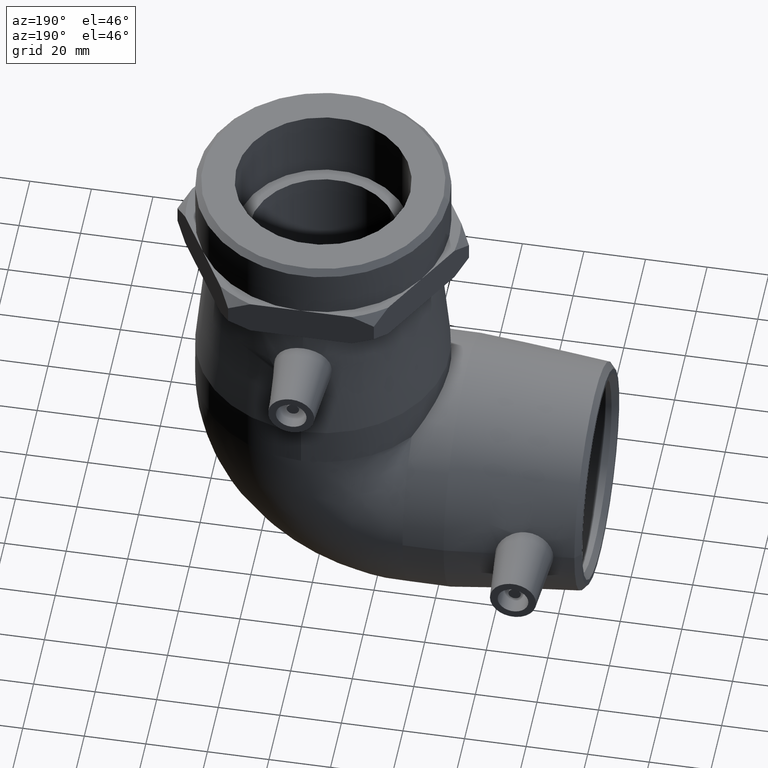
[diagram: clean part render]
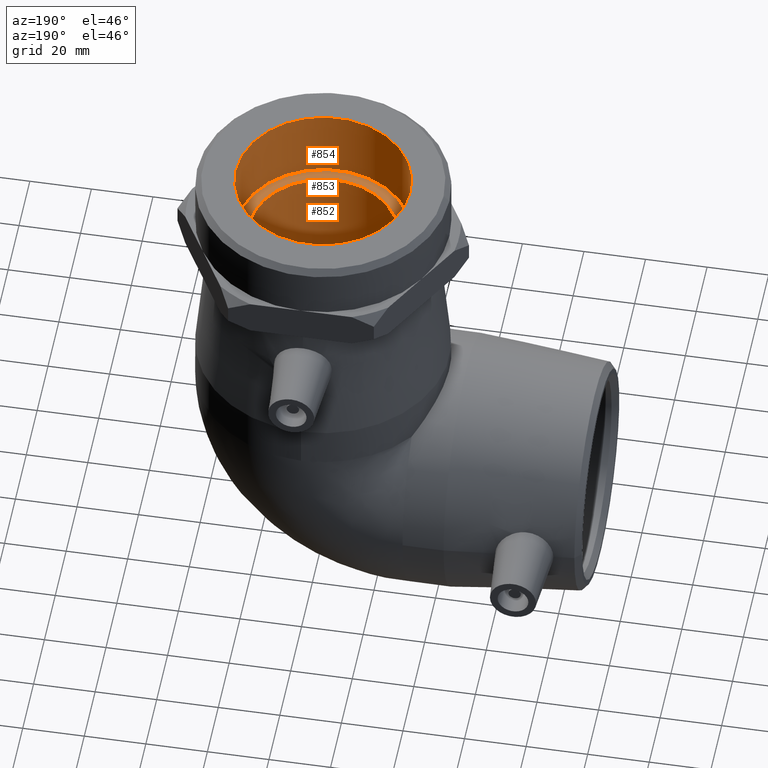
[diagram: same view with one multi-face feature highlighted, each face labeled with its STEP entity id]
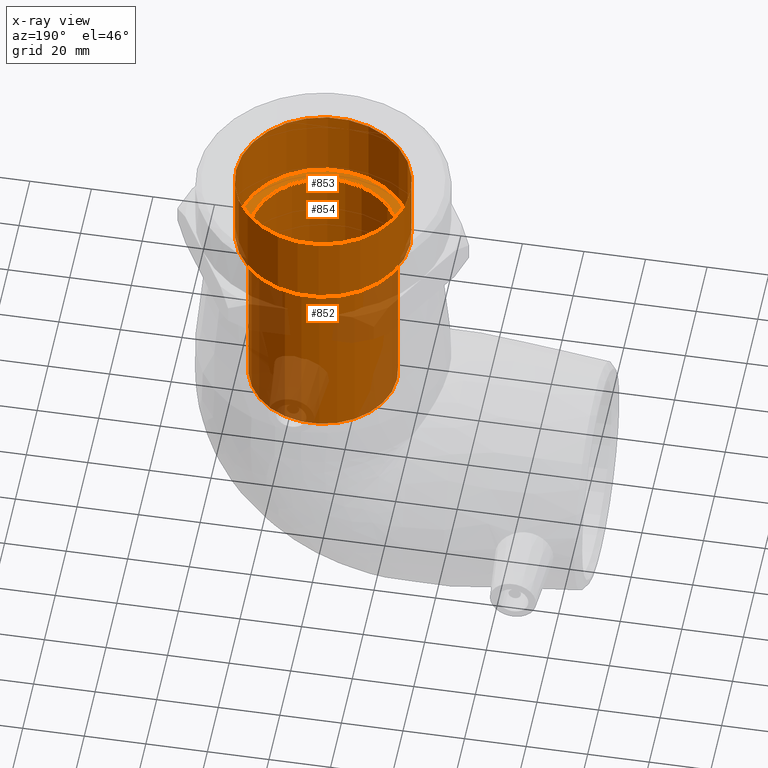
[diagram: x-ray of the same camera — body ghosted, the whole feature saturated]
A machine part, auxiliary view. The highlighted faces form ONE feature: a stepped (counterbored) hole: 2 coaxial cylindrical walls of radii 24 -> 28.328 mm joined by 1 annular planar shoulder face(s). The faces share edges in the B-rep.
The next image is the same camera in x-ray: the body ghosted and the whole hole feature saturated, so the bore chain is visible through the body.
Their STEP definitions:
[1] entity #854 (Cylinder):
#24=CYLINDRICAL_SURFACE('',#958,28.328);
#51=FACE_BOUND('',#270,.T.);
#187=FACE_OUTER_BOUND('',#269,.T.);
#269=EDGE_LOOP('',(#744));
#270=EDGE_LOOP('',(#745));
#343=CIRCLE('',#939,28.328);
#349=CIRCLE('',#957,28.328);
#450=VERTEX_POINT('',#1536);
#454=VERTEX_POINT('',#1566);
#545=EDGE_CURVE('',#450,#450,#343,.T.);
#559=EDGE_CURVE('',#454,#454,#349,.T.);
#744=ORIENTED_EDGE('',*,*,#545,.F.);
#745=ORIENTED_EDGE('',*,*,#559,.T.);
#854=ADVANCED_FACE('',(#187,#51),#24,.F.);
#939=AXIS2_PLACEMENT_3D('',#1537,#1133,#1134);
#957=AXIS2_PLACEMENT_3D('',#1567,#1177,#1178);
#958=AXIS2_PLACEMENT_3D('',#1568,#1179,#1180);
#1133=DIRECTION('center_axis',(0.,0.,-1.));
#1134=DIRECTION('ref_axis',(1.,0.,0.));
#1177=DIRECTION('center_axis',(0.,0.,-1.));
#1178=DIRECTION('ref_axis',(1.,0.,0.));
#1179=DIRECTION('center_axis',(0.,0.,-1.));
#1180=DIRECTION('ref_axis',(-1.,0.,0.));
#1536=CARTESIAN_POINT('',(-28.328,0.,120.));
#1537=CARTESIAN_POINT('Origin',(0.,0.,120.));
#1566=CARTESIAN_POINT('',(-28.328,0.,96.));
#1567=CARTESIAN_POINT('Origin',(0.,0.,96.));
#1568=CARTESIAN_POINT('Origin',(0.,0.,108.));
[2] entity #852 (Cylinder):
#23=CYLINDRICAL_SURFACE('',#954,24.);
#49=FACE_BOUND('',#266,.T.);
#185=FACE_OUTER_BOUND('',#265,.T.);
#265=EDGE_LOOP('',(#740));
#266=EDGE_LOOP('',(#741));
#347=CIRCLE('',#953,24.);
#348=CIRCLE('',#955,24.);
#452=VERTEX_POINT('',#1560);
#453=VERTEX_POINT('',#1563);
#557=EDGE_CURVE('',#452,#452,#347,.T.);
#558=EDGE_CURVE('',#453,#453,#348,.T.);
#740=ORIENTED_EDGE('',*,*,#558,.F.);
#741=ORIENTED_EDGE('',*,*,#557,.T.);
#852=ADVANCED_FACE('',(#185,#49),#23,.F.);
#953=AXIS2_PLACEMENT_3D('',#1561,#1169,#1170);
#954=AXIS2_PLACEMENT_3D('',#1562,#1171,#1172);
#955=AXIS2_PLACEMENT_3D('',#1564,#1173,#1174);
#1169=DIRECTION('center_axis',(0.,0.,-1.));
#1170=DIRECTION('ref_axis',(1.,0.,0.));
#1171=DIRECTION('center_axis',(0.,0.,-1.));
#1172=DIRECTION('ref_axis',(-1.,0.,0.));
#1173=DIRECTION('center_axis',(0.,0.,-1.));
#1174=DIRECTION('ref_axis',(1.,0.,0.));
#1560=CARTESIAN_POINT('',(-24.,0.,33.));
#1561=CARTESIAN_POINT('Origin',(0.,0.,33.));
#1562=CARTESIAN_POINT('Origin',(0.,0.,64.5));
#1563=CARTESIAN_POINT('',(-24.,0.,96.));
#1564=CARTESIAN_POINT('Origin',(0.,0.,96.));
[3] entity #853 (Plane):
#50=FACE_BOUND('',#268,.T.);
#137=PLANE('',#956);
#186=FACE_OUTER_BOUND('',#267,.T.);
#267=EDGE_LOOP('',(#742));
#268=EDGE_LOOP('',(#743));
#348=CIRCLE('',#955,24.);
#349=CIRCLE('',#957,28.328);
#453=VERTEX_POINT('',#1563);
#454=VERTEX_POINT('',#1566);
#558=EDGE_CURVE('',#453,#453,#348,.T.);
#559=EDGE_CURVE('',#454,#454,#349,.T.);
#742=ORIENTED_EDGE('',*,*,#559,.F.);
#743=ORIENTED_EDGE('',*,*,#558,.T.);
#853=ADVANCED_FACE('',(#186,#50),#137,.T.);
#955=AXIS2_PLACEMENT_3D('',#1564,#1173,#1174);
#956=AXIS2_PLACEMENT_3D('',#1565,#1175,#1176);
#957=AXIS2_PLACEMENT_3D('',#1567,#1177,#1178);
#1173=DIRECTION('center_axis',(0.,0.,-1.));
#1174=DIRECTION('ref_axis',(1.,0.,0.));
#1175=DIRECTION('center_axis',(0.,0.,1.));
#1176=DIRECTION('ref_axis',(1.,0.,0.));
#1177=DIRECTION('center_axis',(0.,0.,-1.));
#1178=DIRECTION('ref_axis',(1.,0.,0.));
#1563=CARTESIAN_POINT('',(-24.,0.,96.));
#1564=CARTESIAN_POINT('Origin',(0.,0.,96.));
#1565=CARTESIAN_POINT('Origin',(-28.328,0.,96.));
#1566=CARTESIAN_POINT('',(-28.328,0.,96.));
#1567=CARTESIAN_POINT('Origin',(0.,0.,96.));